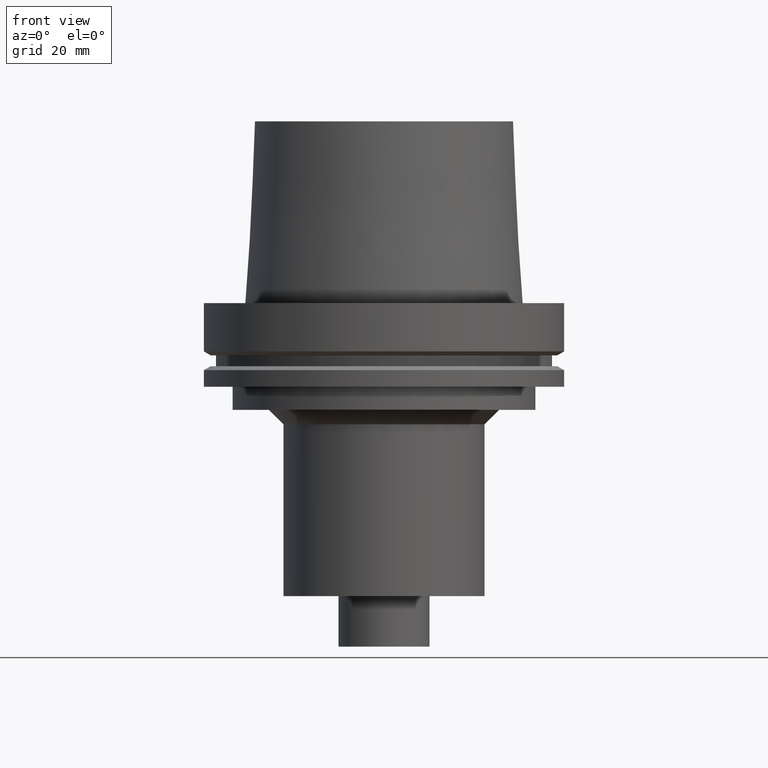
[diagram: clean part render]
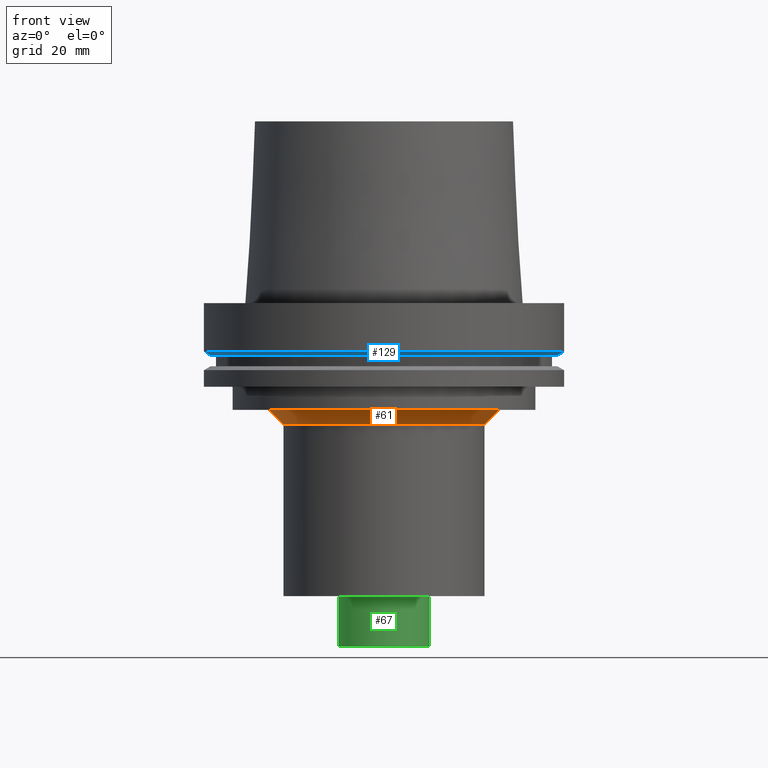
[diagram: same view with three faces highlighted in distinct colors, each labeled with its STEP entity id]
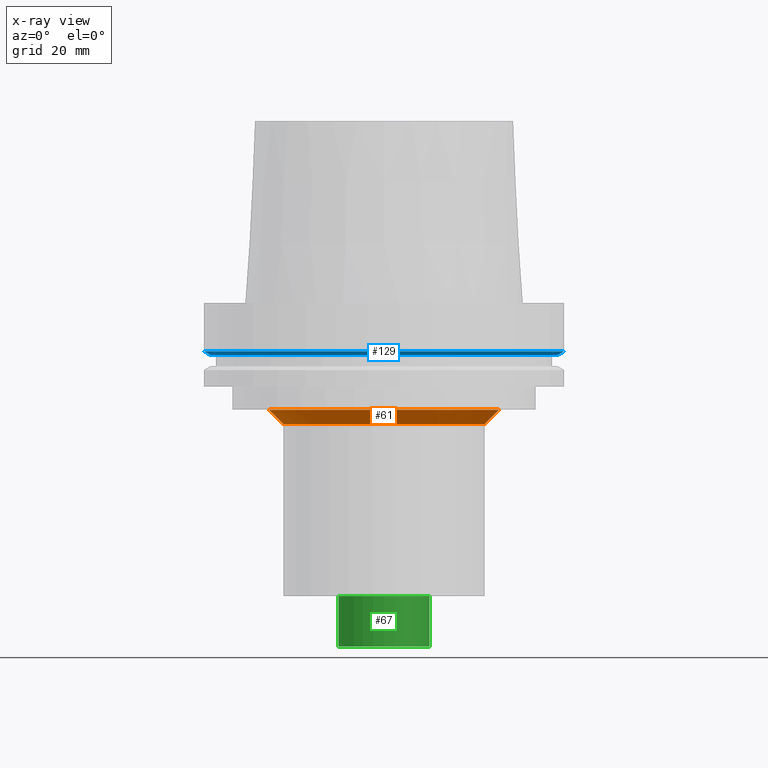
[diagram: x-ray of the same camera — body ghosted, the three highlighted faces saturated]
A machine part, front view with three faces highlighted in distinct colors.
The next image is the same camera in x-ray (body ghosted, the three faces saturated) — at least one of them is partly hidden behind the body in this view.
Their STEP definitions:

[orange] entity #61 — the highlighted conical surface has half-angle 45 deg.
#61=ADVANCED_FACE('Unnamed[1]',(#168,#169),#170,.T.);
#100=EDGE_CURVE('Unnamed[1]',#229,#229,#230,.T.);
#118=EDGE_CURVE('Unnamed[1]',#256,#256,#257,.T.);
#168=FACE_BOUND('',#317,.T.);
#169=FACE_BOUND('',#318,.T.);
#170=CONICAL_SURFACE('',#319,37.4249999999999,0.78539816339748);
#229=VERTEX_POINT('',#393);
#230=CIRCLE('',#394,39.9249999999999);
#256=VERTEX_POINT('',#427);
#257=CIRCLE('',#428,34.9249999999999);
#317=EDGE_LOOP('',(#493));
#318=EDGE_LOOP('',(#494));
#319=AXIS2_PLACEMENT_3D('',#495,#496,#497);
#393=CARTESIAN_POINT('',(2.26559657842262E-015,39.9249999999999,-37.0000000000002));
#394=AXIS2_PLACEMENT_3D('',#559,#560,#561);
#427=CARTESIAN_POINT('',(2.57175827820943E-015,34.9249999999999,-41.9999999999999));
#428=AXIS2_PLACEMENT_3D('',#590,#591,#592);
#493=ORIENTED_EDGE('',*,*,#118,.F.);
#494=ORIENTED_EDGE('',*,*,#100,.T.);
#495=CARTESIAN_POINT('',(2.41867742831603E-015,4.83735485663205E-015,-39.5));
#496=DIRECTION('',(-6.12323399573677E-017,-1.22464679914735E-016,1.0));
#497=DIRECTION('',(-1.23259516440783E-032,1.0,1.22464679914735E-016));
#559=CARTESIAN_POINT('',(2.26559657842262E-015,4.53119315684523E-015,-37.0000000000002));
#560=DIRECTION('',(6.12323399573676E-017,1.22464679914735E-016,-1.0));
#561=DIRECTION('',(-1.23259516440783E-032,1.0,1.22464679914735E-016));
#590=CARTESIAN_POINT('',(2.57175827820943E-015,5.14351655641887E-015,-41.9999999999999));
#591=DIRECTION('',(6.12323399573677E-017,1.22464679914735E-016,-1.0));
#592=DIRECTION('',(-1.23259516440783E-032,1.0,1.22464679914735E-016));

[blue] entity #129 — the highlighted conical surface has half-angle 60 deg.
#71=EDGE_CURVE('Unnamed[1]',#183,#183,#184,.T.);
#129=ADVANCED_FACE('Unnamed[1]',(#273,#274),#275,.T.);
#140=EDGE_CURVE('Unnamed[1]',#292,#292,#293,.T.);
#183=VERTEX_POINT('',#335);
#184=CIRCLE('',#336,60.1225952641912);
#273=FACE_BOUND('',#448,.T.);
#274=FACE_BOUND('',#449,.T.);
#275=CONICAL_SURFACE('',#450,61.3112976320956,1.04719755119668);
#292=VERTEX_POINT('',#471);
#293=CIRCLE('',#472,62.5);
#335=CARTESIAN_POINT('',(1.10983616172729E-015,60.1225952641912,-18.1250000000001));
#336=AXIS2_PLACEMENT_3D('',#508,#509,#510);
#448=EDGE_LOOP('',(#609));
#449=EDGE_LOOP('',(#610));
#450=AXIS2_PLACEMENT_3D('',#611,#612,#613);
#471=CARTESIAN_POINT('',(1.02578894188644E-015,62.5,-16.7524047358084));
#472=AXIS2_PLACEMENT_3D('',#632,#633,#634);
#508=CARTESIAN_POINT('',(1.10983616172729E-015,2.21967232345459E-015,-18.1250000000001));
#509=DIRECTION('',(6.12323399573677E-017,1.22464679914735E-016,-1.0));
#510=DIRECTION('',(-1.23259516440783E-032,1.0,1.22464679914735E-016));
#609=ORIENTED_EDGE('',*,*,#71,.F.);
#610=ORIENTED_EDGE('',*,*,#140,.T.);
#611=CARTESIAN_POINT('',(1.06781255180686E-015,2.13562510361373E-015,-17.4387023679042));
#612=DIRECTION('',(-6.12323399573676E-017,-1.22464679914735E-016,1.0));
#613=DIRECTION('',(-1.23259516440783E-032,1.0,1.22464679914735E-016));
#632=CARTESIAN_POINT('',(1.02578894188644E-015,2.05157788377287E-015,-16.7524047358084));
#633=DIRECTION('',(6.12323399573676E-017,1.22464679914735E-016,-1.0));
#634=DIRECTION('',(-1.23259516440783E-032,1.0,1.22464679914735E-016));

[green] entity #67 — the highlighted cylindrical surface (bore or boss wall) has radius 15.875 mm, axis along (0, 0, -1).
#67=ADVANCED_FACE('Unnamed[1]',(#176,#177),#178,.T.);
#105=EDGE_CURVE('Unnamed[1]',#236,#236,#237,.T.);
#144=EDGE_CURVE('Unnamed[1]',#298,#298,#299,.T.);
#176=FACE_BOUND('',#326,.T.);
#177=FACE_BOUND('',#327,.T.);
#178=CYLINDRICAL_SURFACE('',#328,15.8749999999998);
#236=VERTEX_POINT('',#402);
#237=CIRCLE('',#403,15.8749999999997);
#298=VERTEX_POINT('',#479);
#299=CIRCLE('',#480,15.8749999999999);
#326=EDGE_LOOP('',(#500));
#327=EDGE_LOOP('',(#501));
#328=AXIS2_PLACEMENT_3D('',#502,#503,#504);
#402=CARTESIAN_POINT('',(7.29277168892246E-015,15.8749999999997,-119.1));
#403=AXIS2_PLACEMENT_3D('',#567,#568,#569);
#479=CARTESIAN_POINT('',(6.22120573966855E-015,15.8749999999999,-101.6));
#480=AXIS2_PLACEMENT_3D('',#638,#639,#640);
#500=ORIENTED_EDGE('',*,*,#105,.F.);
#501=ORIENTED_EDGE('',*,*,#144,.T.);
#502=CARTESIAN_POINT('',(6.7569887142955E-015,1.3513977428591E-014,-110.35));
#503=DIRECTION('',(6.12323399573677E-017,1.22464679914735E-016,-1.0));
#504=DIRECTION('',(-1.23259516440783E-032,1.0,1.22464679914735E-016));
#567=CARTESIAN_POINT('',(7.29277168892246E-015,1.45855433778449E-014,-119.1));
#568=DIRECTION('',(6.12323399573677E-017,1.22464679914735E-016,-1.0));
#569=DIRECTION('',(-1.23259516440783E-032,1.0,1.22464679914735E-016));
#638=CARTESIAN_POINT('',(6.22120573966855E-015,1.24424114793371E-014,-101.6));
#639=DIRECTION('',(6.12323399573677E-017,1.22464679914735E-016,-1.0));
#640=DIRECTION('',(-1.23259516440783E-032,1.0,1.22464679914735E-016));